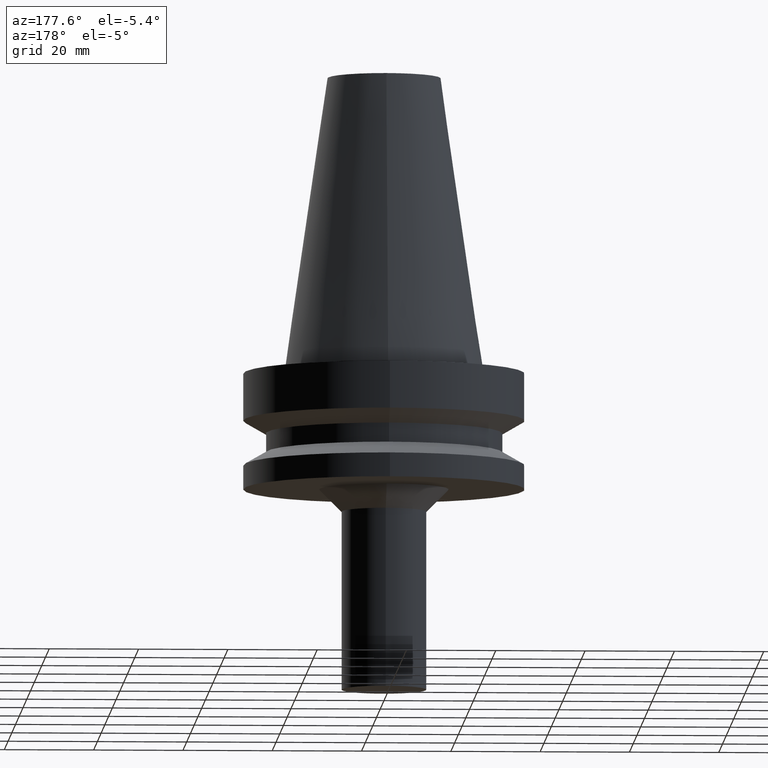
[diagram: clean part render]
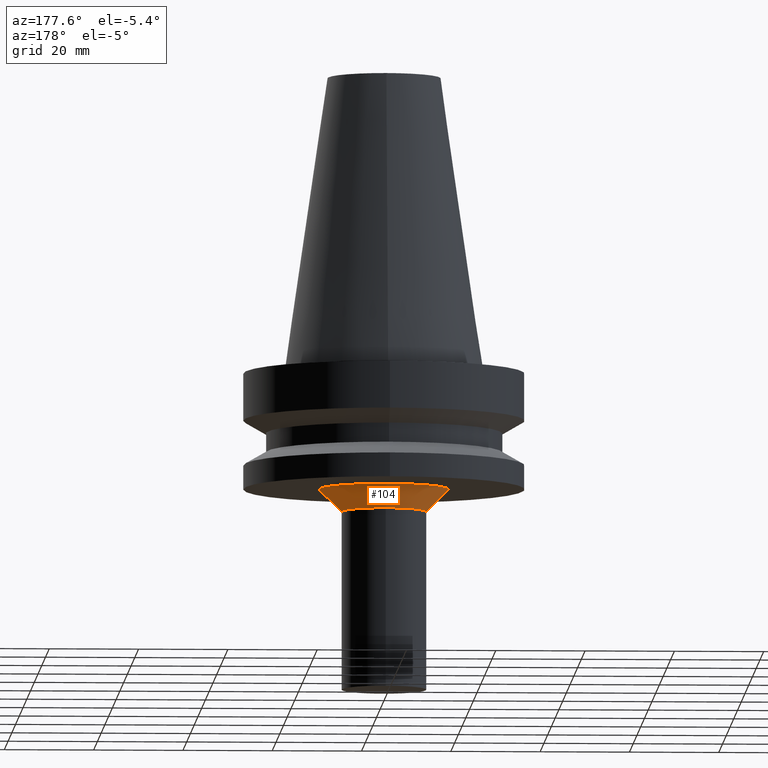
[diagram: same view with one face highlighted and labeled with its STEP entity id]
A machine part, auxiliary view. The second image highlights one B-rep face of the part: STEP entity #104.
In plain terms, the highlighted conical surface has half-angle 45 deg.
Its self-contained STEP definition (entity closure, byte-faithful):
#58=EDGE_CURVE('Unnamed[1]',#144,#144,#145,.T.);
#67=EDGE_CURVE('Unnamed[1]',#158,#158,#159,.T.);
#104=ADVANCED_FACE('Unnamed[1]',(#214,#215),#216,.T.);
#144=VERTEX_POINT('',#256);
#145=CIRCLE('',#257,14.5);
#158=VERTEX_POINT('',#274);
#159=CIRCLE('',#275,9.50000000000002);
#214=FACE_BOUND('',#343,.T.);
#215=FACE_BOUND('',#344,.T.);
#216=CONICAL_SURFACE('',#345,12.0,0.785398163397443);
#256=CARTESIAN_POINT('',(5.9952043329758E-015,14.5,-26.9999999999998));
#257=AXIS2_PLACEMENT_3D('',#381,#382,#383);
#274=CARTESIAN_POINT('',(7.10542735760096E-015,9.50000000000003,-31.9999999999998));
#275=AXIS2_PLACEMENT_3D('',#396,#397,#398);
#343=EDGE_LOOP('',(#457));
#344=EDGE_LOOP('',(#458));
#345=AXIS2_PLACEMENT_3D('',#459,#460,#461);
#381=CARTESIAN_POINT('',(5.9952043329758E-015,1.29748499614054E-014,-26.9999999999998));
#382=DIRECTION('',(2.22044604925031E-016,-6.87296523471693E-016,-1.0));
#383=DIRECTION('',(1.73640130667518E-031,1.0,-6.87296523471693E-016));
#396=CARTESIAN_POINT('',(7.10542735760096E-015,9.53836734404697E-015,-31.9999999999998));
#397=DIRECTION('',(2.22044604925031E-016,-6.87296523471693E-016,-1.0));
#398=DIRECTION('',(1.73640130667518E-031,1.0,-6.87296523471693E-016));
#457=ORIENTED_EDGE('',*,*,#67,.F.);
#458=ORIENTED_EDGE('',*,*,#58,.T.);
#459=CARTESIAN_POINT('',(6.55031584528838E-015,1.12566086527262E-014,-29.4999999999998));
#460=DIRECTION('',(-2.22044604925031E-016,6.87296523471693E-016,1.0));
#461=DIRECTION('',(1.73640130667518E-031,1.0,-6.87296523471693E-016));